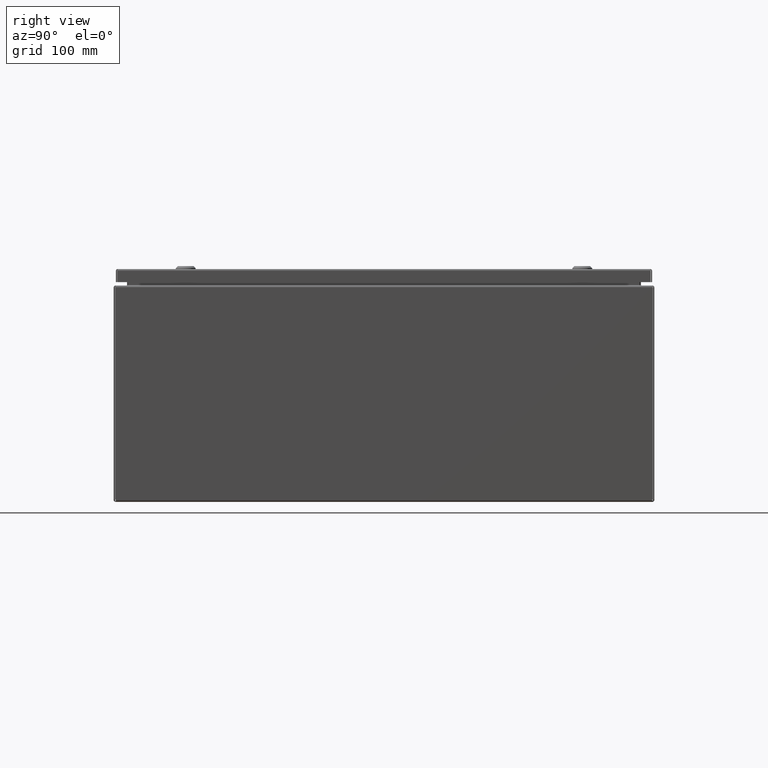
[diagram: clean part render]
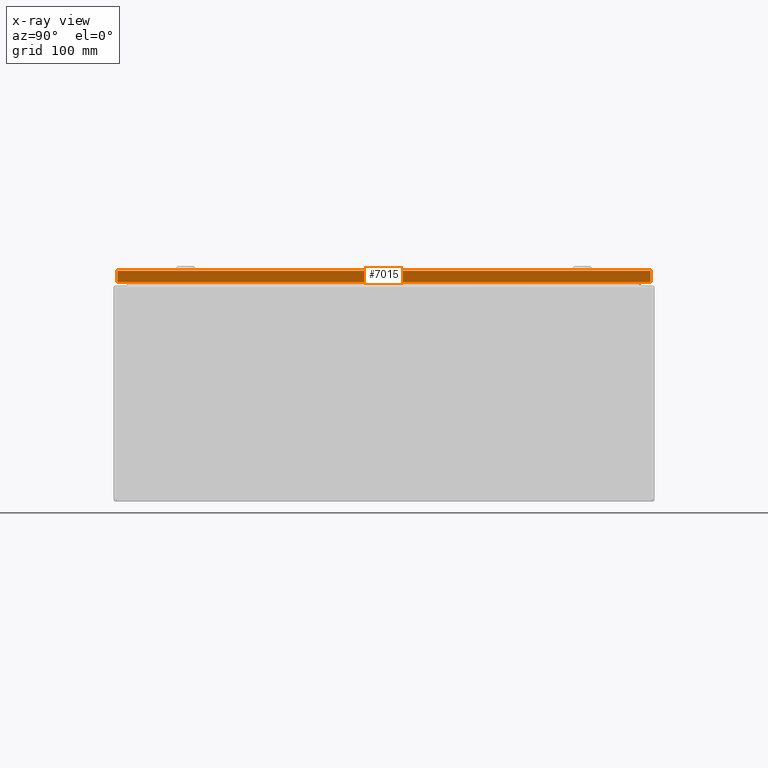
[diagram: x-ray — body ghosted, one internal face saturated and labeled with its STEP entity id]
A machine part, right view, then the same camera in x-ray: the body is ghosted and one INTERNAL B-rep face — a face not visible from any outside direction — is saturated and labeled: STEP entity #7015.
In plain terms, the highlighted planar face has unit normal (-1, -0, 0).
Its self-contained STEP definition (entity closure, byte-faithful):
#6976=CARTESIAN_POINT('',(0.074000000000002,14.875000000000000,0.374696241644326));
#6977=DIRECTION('',(1.0,0.0,0.0));
#6978=DIRECTION('',(0.0,0.0,-1.0));
#6979=AXIS2_PLACEMENT_3D('',#6976,#6977,#6978);
#6980=PLANE('',#6979);
#6981=CARTESIAN_POINT('',(0.074000000000006,0.085048543456044,0.105250000000001));
#6982=VERTEX_POINT('',#6981);
#6983=CARTESIAN_POINT('',(0.073999999999997,29.664951456543957,0.105250000000007));
#6984=VERTEX_POINT('',#6983);
#6985=CARTESIAN_POINT('',(0.074000000000006,0.085048543456043,0.105250000000000));
#6986=DIRECTION('',(0.0,1.0,0.0));
#6987=VECTOR('',#6986,29.579902913087913);
#6988=LINE('',#6985,#6987);
#6989=EDGE_CURVE('',#6982,#6984,#6988,.T.);
#6990=ORIENTED_EDGE('',*,*,#6989,.T.);
#6991=CARTESIAN_POINT('',(0.073999999999997,29.664951456543957,0.730000000000007));
#6992=VERTEX_POINT('',#6991);
#6993=CARTESIAN_POINT('',(0.073999999999997,29.664951456543957,0.105250000000007));
#6994=DIRECTION('',(0.0,0.0,1.0));
#6995=VECTOR('',#6994,0.624750000000000);
#6996=LINE('',#6993,#6995);
#6997=EDGE_CURVE('',#6984,#6992,#6996,.T.);
#6998=ORIENTED_EDGE('',*,*,#6997,.T.);
#6999=CARTESIAN_POINT('',(0.074000000000006,0.085048543456045,0.730000000000001));
#7000=VERTEX_POINT('',#6999);
#7001=CARTESIAN_POINT('',(0.073999999999997,29.664951456543957,0.730000000000007));
#7002=DIRECTION('',(0.0,-1.0,0.0));
#7003=VECTOR('',#7002,29.579902913087913);
#7004=LINE('',#7001,#7003);
#7005=EDGE_CURVE('',#6992,#7000,#7004,.T.);
#7006=ORIENTED_EDGE('',*,*,#7005,.T.);
#7007=CARTESIAN_POINT('',(0.074000000000006,0.085048543456045,0.105250000000001));
#7008=DIRECTION('',(0.0,0.0,1.0));
#7009=VECTOR('',#7008,0.624750000000000);
#7010=LINE('',#7007,#7009);
#7011=EDGE_CURVE('',#6982,#7000,#7010,.T.);
#7012=ORIENTED_EDGE('',*,*,#7011,.F.);
#7013=EDGE_LOOP('',(#6990,#6998,#7006,#7012));
#7014=FACE_OUTER_BOUND('',#7013,.T.);
#7015=ADVANCED_FACE('',(#7014),#6980,.T.);